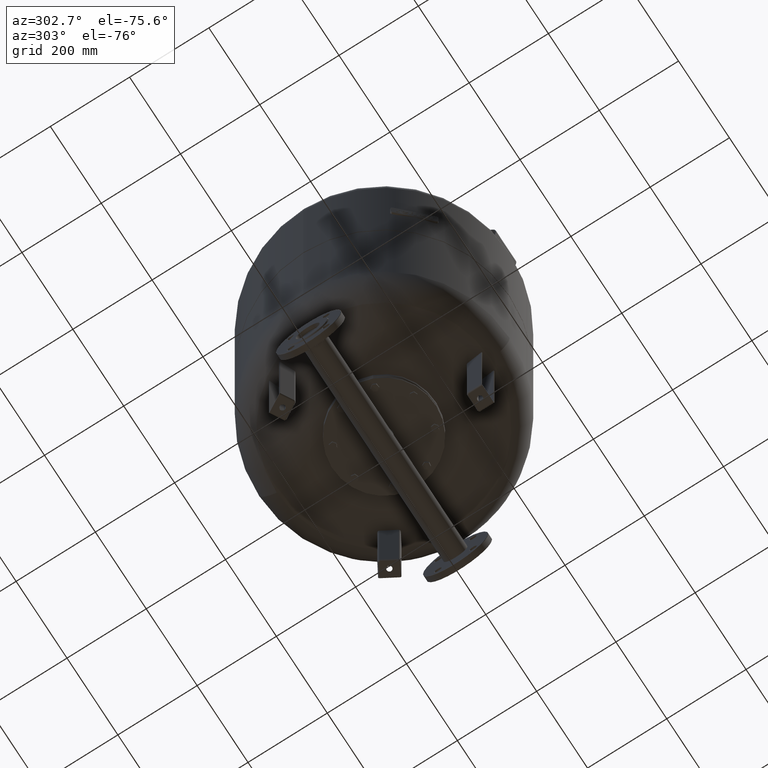
[diagram: clean part render]
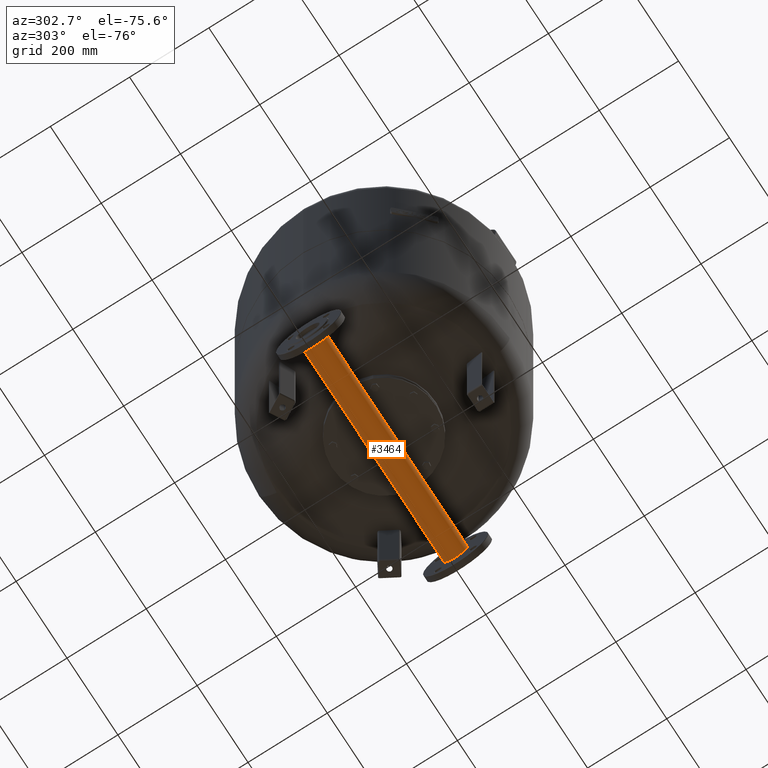
[diagram: same view with one face highlighted and labeled with its STEP entity id]
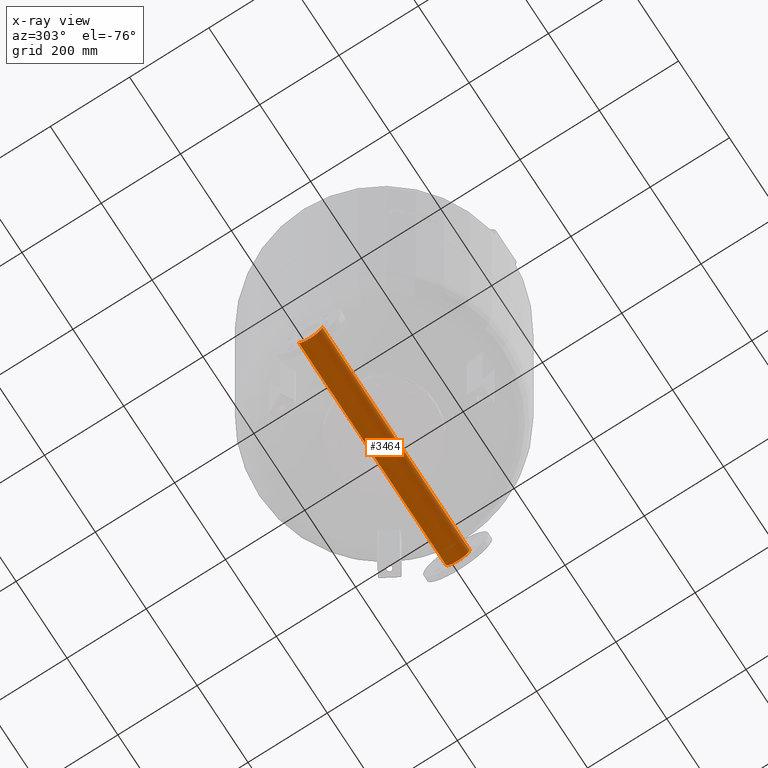
[diagram: x-ray of the same camera — body ghosted, the highlighted face saturated]
A machine part, auxiliary view. The second image highlights one B-rep face of the part: STEP entity #3464.
The next image is the same camera in x-ray: the body ghosted, the highlighted face saturated — about 0% of this face is hidden behind the body in this view.
In plain terms, the highlighted cylindrical surface (edge-blend (fillet) strip) has radius 30.15 mm, axis along (-1, 0, 0).
Its self-contained STEP definition (entity closure, byte-faithful):
#3423=CARTESIAN_POINT('',(-247.500000000000030,0.0,105.000000000000010));
#3424=DIRECTION('',(-1.0,0.0,0.0));
#3425=DIRECTION('',(0.0,-1.0,0.0));
#3426=AXIS2_PLACEMENT_3D('',#3423,#3424,#3425);
#3427=CYLINDRICAL_SURFACE('',#3426,30.149999999999999);
#3428=CARTESIAN_POINT('',(-290.0,-30.149999999999999,105.000000000000010));
#3429=VERTEX_POINT('',#3428);
#3430=CARTESIAN_POINT('',(290.0,-30.149999999999999,105.000000000000010));
#3431=VERTEX_POINT('',#3430);
#3432=CARTESIAN_POINT('',(-290.0,-30.149999999999999,105.000000000000010));
#3433=DIRECTION('',(1.0,0.0,0.0));
#3434=VECTOR('',#3433,580.0);
#3435=LINE('',#3432,#3434);
#3436=EDGE_CURVE('',#3429,#3431,#3435,.T.);
#3437=ORIENTED_EDGE('',*,*,#3436,.F.);
#3438=CARTESIAN_POINT('',(-290.0,30.149999999999999,105.000000000000010));
#3439=VERTEX_POINT('',#3438);
#3440=CARTESIAN_POINT('',(-290.0,0.0,105.000000000000010));
#3441=DIRECTION('',(-1.0,0.0,0.0));
#3442=DIRECTION('',(0.0,-1.0,0.0));
#3443=AXIS2_PLACEMENT_3D('',#3440,#3441,#3442);
#3444=CIRCLE('',#3443,30.149999999999999);
#3445=EDGE_CURVE('',#3439,#3429,#3444,.T.);
#3446=ORIENTED_EDGE('',*,*,#3445,.F.);
#3447=CARTESIAN_POINT('',(290.0,30.149999999999999,105.000000000000010));
#3448=VERTEX_POINT('',#3447);
#3449=CARTESIAN_POINT('',(-290.0,30.149999999999999,105.000000000000010));
#3450=DIRECTION('',(1.0,0.0,0.0));
#3451=VECTOR('',#3450,580.0);
#3452=LINE('',#3449,#3451);
#3453=EDGE_CURVE('',#3439,#3448,#3452,.T.);
#3454=ORIENTED_EDGE('',*,*,#3453,.T.);
#3455=CARTESIAN_POINT('',(290.0,0.0,105.000000000000010));
#3456=DIRECTION('',(-1.0,0.0,0.0));
#3457=DIRECTION('',(0.0,-1.0,0.0));
#3458=AXIS2_PLACEMENT_3D('',#3455,#3456,#3457);
#3459=CIRCLE('',#3458,30.149999999999999);
#3460=EDGE_CURVE('',#3448,#3431,#3459,.T.);
#3461=ORIENTED_EDGE('',*,*,#3460,.T.);
#3462=EDGE_LOOP('',(#3437,#3446,#3454,#3461));
#3463=FACE_OUTER_BOUND('',#3462,.T.);
#3464=ADVANCED_FACE('',(#3463),#3427,.T.);